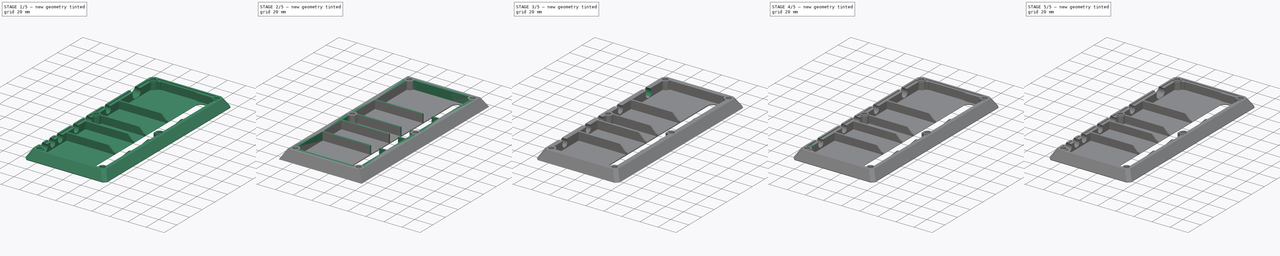
[diagram: build sequence overview — one tinted view per stage of 5, left to right]
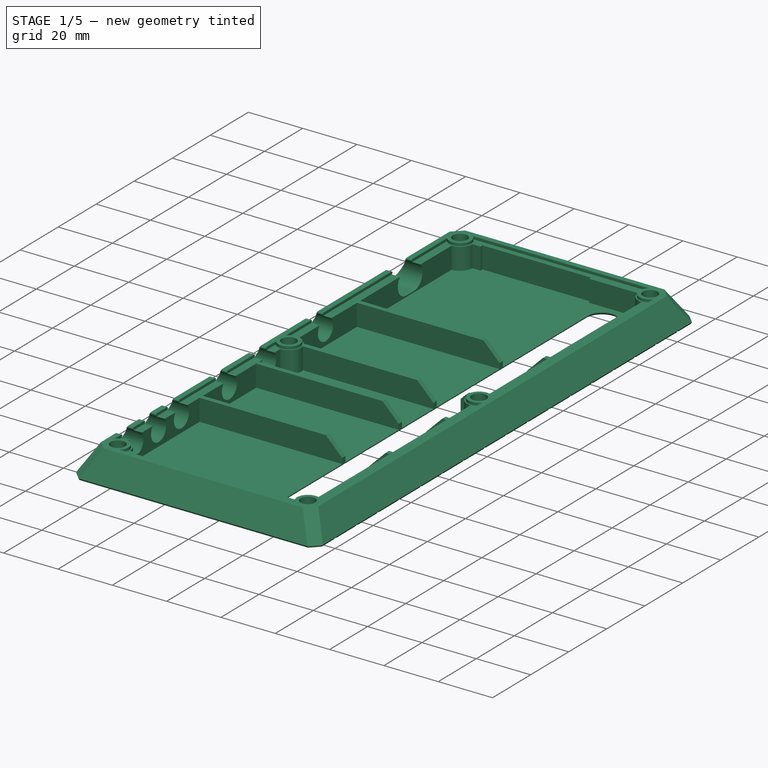
[diagram: stage 1 of 5 — iso view after this stage's code; geometry added in this stage tinted green]
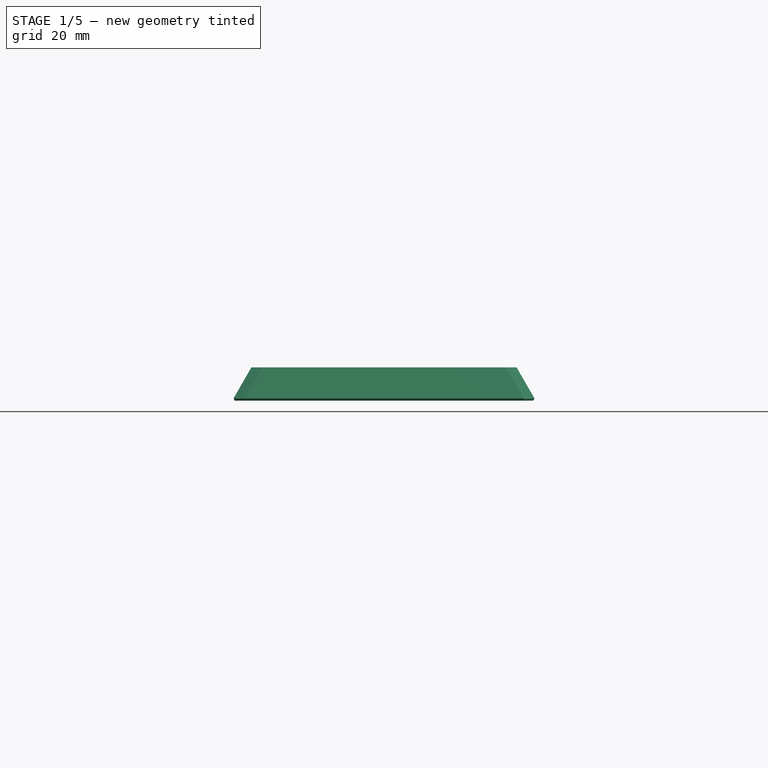
[diagram: stage 1 of 5 — front view after this stage's code; geometry added in this stage tinted green]
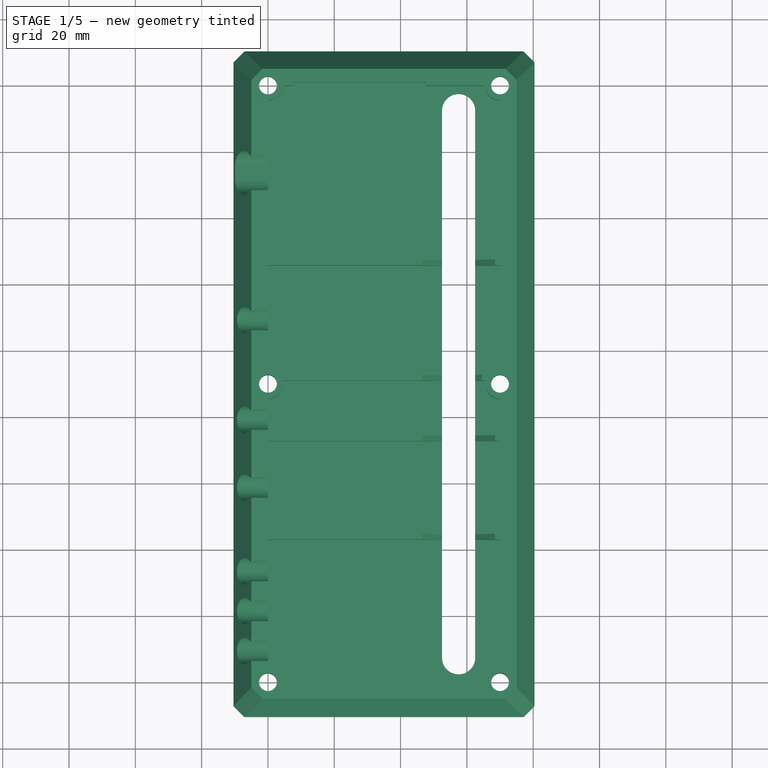
[diagram: stage 1 of 5 — top view after this stage's code; geometry added in this stage tinted green]
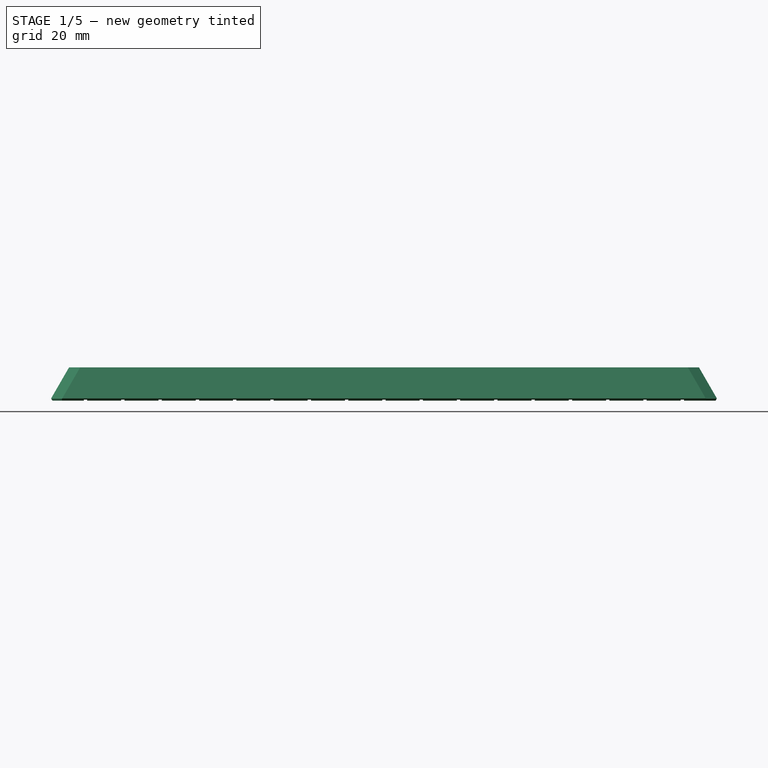
[diagram: stage 1 of 5 — right view after this stage's code; geometry added in this stage tinted green]
FCSTD DOCUMENT  (FreeCAD 0.16R5861 (Git))
Label: interconnect_housing_0.6
License: All rights reserved
LicenseURL: http://en.wikipedia.org/wiki/All_rights_reserved
objects: Sketcher::SketchObject×13, PartDesign::Pocket×9, PartDesign::Chamfer×5, PartDesign::Fillet×4, PartDesign::Pad×3, Part::Feature×2, PartDesign::Draft×1, PartDesign::LinearPattern×1
note: 50 computed .brp shape members not serialized (recipe doc carries the construction recipe); baked Part::Feature solids carry a one-line shape summary decoded from their .brp

FEATURE [Part::Feature] Pad002001  label="Pad003"
  shape: bbox 90.8 x 200.8 x 10 mm, 147 faces (baked)
FEATURE [Sketcher::SketchObject] Sketch010
  ExternalGeometry = -> [Pad002001]
  Placement = pos=(0,0,0) rot=(1,0,0;3.14159rad)
  Support = -> Pad002001 [Face129]
  sketch-geometry (4):
    g0: LineSegment StartX=-10.3985 StartY=0.523503 StartZ=0 EndX=80.3985 EndY=0.523503 EndZ=0
    g1: LineSegment StartX=80.3985 StartY=0.523503 StartZ=0 EndX=80.3985 EndY=-0.476497 EndZ=0
    g2: LineSegment StartX=80.3985 StartY=-0.476497 StartZ=0 EndX=-10.3985 EndY=-0.476497 EndZ=0
    g3: LineSegment StartX=-10.3985 StartY=-0.476497 StartZ=0 EndX=-10.3985 EndY=0.523503 EndZ=0
  constraints (12):
    c: Coincident(g0,g1)
    c: Coincident(g1,g2)
    c: Coincident(g2,g3)
    c: Coincident(g3,g0)
    c: Horizontal(g0)
    c: Horizontal(g2)
    c: Vertical(g1)
    c: Vertical(g3)
    c: PointOnObject(g0,g-4)
    c: PointOnObject(g1,g-5)
    c: DistanceY(g0,g2) = -1
    c: DistanceY(g0,g-3) = 9.5
FEATURE [PartDesign::Pocket] Pocket006
  Length = 0.3
  Sketch = -> Sketch010
  Type = 0
FEATURE [PartDesign::LinearPattern] LinearPattern
  Direction = -> Sketch010 [V_Axis]
  Length = 180
  Occurrences = 17
  Originals = -> [Pocket006]
  Reversed = true
FEATURE [Part::Feature] LinearPattern001
  shape: bbox 90.8 x 200.8 x 10 mm, 292 faces (baked)
FEATURE [Sketcher::SketchObject] Sketch011
  ExternalGeometry = -> [LinearPattern001]
  Placement = pos=(0,0,0) rot=(1,0,0;3.14159rad)
  Support = -> LinearPattern001 [Face167]
  sketch-geometry (6):
    g0: Circle CenterX=0 CenterY=0 CenterZ=0 NormalX=0 NormalY=0 NormalZ=1 Radius=3.25
    g1: Circle CenterX=70 CenterY=0 CenterZ=0 NormalX=0 NormalY=0 NormalZ=1 Radius=3.25
    g2: Circle CenterX=70 CenterY=-90 CenterZ=0 NormalX=0 NormalY=0 NormalZ=1 Radius=3.25
    g3: Circle CenterX=0 CenterY=-90 CenterZ=0 NormalX=0 NormalY=0 NormalZ=1 Radius=3.25
    g4: Circle CenterX=0 CenterY=-180 CenterZ=0 NormalX=0 NormalY=0 NormalZ=1 Radius=3.25
    g5: Circle CenterX=70 CenterY=-180 CenterZ=0 NormalX=0 NormalY=0 NormalZ=1 Radius=3.25
  constraints (12):
    c: Coincident(g0,g-1)
    c: Coincident(g1,g-3)
    c: Coincident(g2,g-4)
    c: Coincident(g3,g-5)
    c: Coincident(g4,g-6)
    c: Coincident(g5,g-7)
    c: Equal(g5,g4)
    c: Equal(g4,g3)
    c: Equal(g3,g2)
    c: Equal(g2,g0)
    c: Equal(g0,g1)
    c: Radius(g0) = 3.25
FEATURE [PartDesign::Pocket] Pocket007
  Length = 5
  Sketch = -> Sketch011
  Type = 1
FEATURE [PartDesign::Chamfer] Chamfer004
  Base = -> Pocket007 [Edge575,Edge292,Edge286,Edge563,Edge462,Edge471,Edge229,Edge219,Edge74,Edge326,Edge72,Edge315]
  Size = 0.3
FEATURE [Sketcher::SketchObject] Sketch012
  Placement = pos=(0,0,10) rot=(0,0,1;0rad)
  Support = -> Chamfer004 [Face167]
  sketch-geometry (4):
    g0: LineSegment StartX=-20 StartY=-20 StartZ=0 EndX=90 EndY=-20 EndZ=0
    g1: LineSegment StartX=90 StartY=-20 StartZ=0 EndX=90 EndY=200 EndZ=0
    g2: LineSegment StartX=90 StartY=200 StartZ=0 EndX=-20 EndY=200 EndZ=0
    g3: LineSegment StartX=-20 StartY=200 StartZ=0 EndX=-20 EndY=-20 EndZ=0
  constraints (12):
    c: Coincident(g0,g1)
    c: Coincident(g1,g2)
    c: Coincident(g2,g3)
    c: Coincident(g3,g0)
    c: Horizontal(g0)
    c: Horizontal(g2)
    c: Vertical(g1)
    c: Vertical(g3)
    c: DistanceY(g-1,g0) = -20
    c: DistanceX(g-1,g0) = -20
    c: DistanceY(g3) = -220
    c: DistanceX(g2) = -110
FEATURE [PartDesign::Pocket] Pocket008
  Length = 0.4
  Sketch = -> Sketch012
  Type = 0
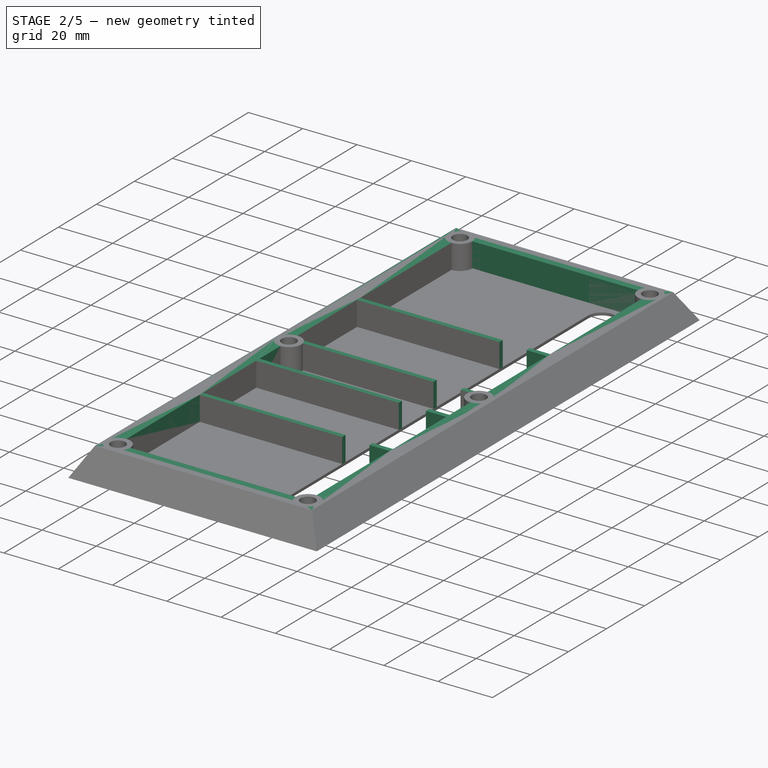
[diagram: stage 2 of 5 — iso view after this stage's code; geometry added in this stage tinted green]
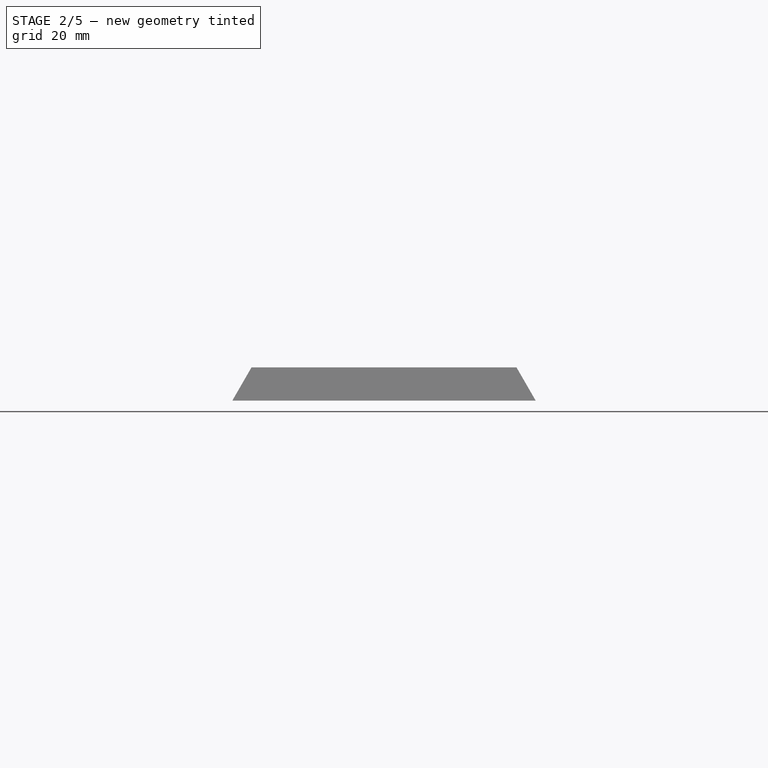
[diagram: stage 2 of 5 — front view after this stage's code; geometry added in this stage tinted green]
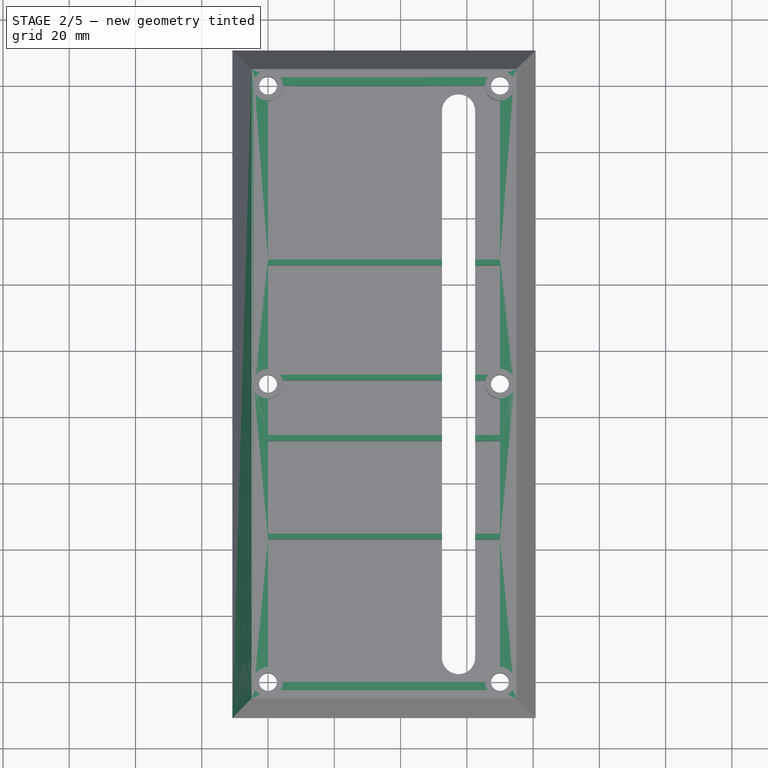
[diagram: stage 2 of 5 — top view after this stage's code; geometry added in this stage tinted green]
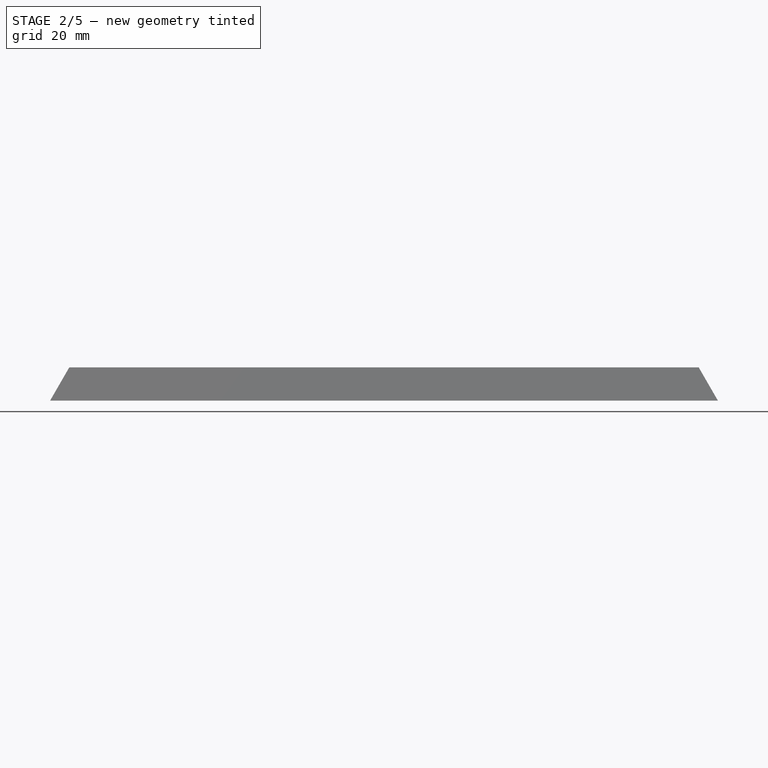
[diagram: stage 2 of 5 — right view after this stage's code; geometry added in this stage tinted green]
FEATURE [Sketcher::SketchObject] Sketch
  sketch-geometry (19):
    g0: LineSegment [constr] StartX=0 StartY=0 StartZ=0 EndX=70 EndY=0 EndZ=0
    g1: LineSegment [constr] StartX=70 StartY=0 StartZ=0 EndX=70 EndY=180 EndZ=0
    g2: LineSegment [constr] StartX=70 StartY=180 StartZ=0 EndX=0 EndY=180 EndZ=0
    g3: LineSegment [constr] StartX=0 StartY=180 StartZ=0 EndX=0 EndY=0 EndZ=0
    g4: LineSegment [constr] StartX=0 StartY=90 StartZ=0 EndX=70 EndY=90 EndZ=0
    g5: Circle CenterX=0 CenterY=180 CenterZ=0 NormalX=0 NormalY=0 NormalZ=1 Radius=2.7
    g6: Circle CenterX=70 CenterY=180 CenterZ=0 NormalX=0 NormalY=0 NormalZ=1 Radius=2.7
    g7: Circle CenterX=70 CenterY=90 CenterZ=0 NormalX=0 NormalY=0 NormalZ=1 Radius=2.7
    g8: Circle CenterX=0 CenterY=90 CenterZ=0 NormalX=0 NormalY=0 NormalZ=1 Radius=2.7
    g9: Circle CenterX=0 CenterY=0 CenterZ=0 NormalX=0 NormalY=0 NormalZ=1 Radius=2.7
    g10: Circle CenterX=70 CenterY=0 CenterZ=0 NormalX=0 NormalY=0 NormalZ=1 Radius=2.7
    g11: LineSegment StartX=-5 StartY=-5 StartZ=0 EndX=75 EndY=-5 EndZ=0
    g12: LineSegment StartX=75 StartY=-5 StartZ=0 EndX=75 EndY=185 EndZ=0
    g13: LineSegment StartX=75 StartY=185 StartZ=0 EndX=-5 EndY=185 EndZ=0
    g14: LineSegment StartX=-5 StartY=185 StartZ=0 EndX=-5 EndY=-5 EndZ=0
    g15: ArcOfCircle CenterX=57.5 CenterY=172.5 CenterZ=0 NormalX=0 NormalY=0 NormalZ=1 Radius=5 StartAngle=0 EndAngle=3.14159
    g16: ArcOfCircle CenterX=57.5 CenterY=7.5 CenterZ=0 NormalX=0 NormalY=0 NormalZ=1 Radius=5 StartAngle=3.14159 EndAngle=6.28319
    g17: LineSegment StartX=52.5 StartY=172.5 StartZ=0 EndX=52.5 EndY=7.5 EndZ=0
    g18: LineSegment StartX=62.5 StartY=172.5 StartZ=0 EndX=62.5 EndY=7.5 EndZ=0
  constraints (49):
    c: Coincident(g0,g1)
    c: Coincident(g1,g2)
    c: Coincident(g2,g3)
    c: Coincident(g3,g0)
    c: Horizontal(g0)
    c: Horizontal(g2)
    c: Vertical(g1)
    c: Vertical(g3)
    c: Coincident(g0,g-1)
    c: PointOnObject(g4,g3)
    c: PointOnObject(g4,g1)
    c: Horizontal(g4)
    c: DistanceY(g4,g1) = 90
    c: DistanceY(g1) = 180
    c: DistanceX(g2) = -70
    c: Coincident(g5,g2)
    c: Coincident(g6,g1)
    c: Coincident(g7,g4)
    c: Coincident(g8,g4)
    c: Coincident(g9,g-1)
    c: Coincident(g10,g0)
    c: Equal(g9,g8)
    c: Equal(g8,g10)
    c: Equal(g10,g7)
    c: Equal(g7,g6)
    c: Equal(g6,g5)
    c: Radius(g6) = 2.7
    c: Coincident(g11,g12)
    c: Coincident(g12,g13)
    c: Coincident(g13,g14)
    c: Coincident(g14,g11)
    c: Horizontal(g11)
    c: Horizontal(g13)
    c: Vertical(g12)
    c: Vertical(g14)
    c: DistanceX(g-1,g11) = -5
    c: DistanceY(g-1,g11) = -5
    c: DistanceX(g1,g12) = 5
    c: DistanceY(g1,g12) = 5
    c: Tangent(g15,g18) = 1.5708
    c: Tangent(g15,g17) = -1.5708
    c: Tangent(g17,g16) = -1.5708
    c: Tangent(g18,g16) = 1.5708
    c: Vertical(g17)
    c: Equal(g15,g16)
    c: DistanceX(g16,g16) = -10
    c: DistanceY(g16,g0) = -7.5
    c: DistanceY(g15,g1) = 7.5
    c: DistanceX(g15,g1) = 12.5
FEATURE [PartDesign::Pad] Pad
  Length = 10
  Length2 = 100
  Sketch = -> Sketch
  Type = 0
FEATURE [Sketcher::SketchObject] Sketch001
  ExternalGeometry = -> [Pad]
  Placement = pos=(0,0,10) rot=(0,0,1;0rad)
  Support = -> Pad [Face16]
  sketch-geometry (24):
    g0: LineSegment [constr] StartX=0 StartY=0 StartZ=0 EndX=70 EndY=0 EndZ=0
    g1: LineSegment [constr] StartX=70 StartY=0 StartZ=0 EndX=70 EndY=180 EndZ=0
    g2: LineSegment [constr] StartX=70 StartY=180 StartZ=0 EndX=0 EndY=180 EndZ=0
    g3: LineSegment [constr] StartX=0 StartY=180 StartZ=0 EndX=0 EndY=0 EndZ=0
    g4: LineSegment StartX=0 StartY=180 StartZ=0 EndX=70 EndY=180 EndZ=0
    g5: LineSegment StartX=70 StartY=180 StartZ=0 EndX=70 EndY=127.5 EndZ=0
    g6: LineSegment StartX=70 StartY=127.5 StartZ=0 EndX=0 EndY=127.5 EndZ=0
    g7: LineSegment StartX=0 StartY=127.5 StartZ=0 EndX=0 EndY=180 EndZ=0
    g8: LineSegment StartX=0 StartY=125.75 StartZ=0 EndX=70 EndY=125.75 EndZ=0
    g9: LineSegment StartX=70 StartY=125.75 StartZ=0 EndX=70 EndY=92.75 EndZ=0
    g10: LineSegment StartX=70 StartY=92.75 StartZ=0 EndX=0 EndY=92.75 EndZ=0
    g11: LineSegment StartX=0 StartY=92.75 StartZ=0 EndX=0 EndY=125.75 EndZ=0
    g12: LineSegment StartX=0 StartY=91 StartZ=0 EndX=70 EndY=91 EndZ=0
    g13: LineSegment StartX=70 StartY=91 StartZ=0 EndX=70 EndY=74.5 EndZ=0
    g14: LineSegment StartX=70 StartY=74.5 StartZ=0 EndX=0 EndY=74.5 EndZ=0
    g15: LineSegment StartX=0 StartY=74.5 StartZ=0 EndX=0 EndY=91 EndZ=0
    g16: LineSegment StartX=0 StartY=72.75 StartZ=0 EndX=70 EndY=72.75 EndZ=0
    g17: LineSegment StartX=70 StartY=72.75 StartZ=0 EndX=70 EndY=44.75 EndZ=0
    g18: LineSegment StartX=70 StartY=44.75 StartZ=0 EndX=0 EndY=44.75 EndZ=0
    g19: LineSegment StartX=0 StartY=44.75 StartZ=0 EndX=0 EndY=72.75 EndZ=0
    g20: LineSegment StartX=0 StartY=43 StartZ=0 EndX=70 EndY=43 EndZ=0
    g21: LineSegment StartX=70 StartY=43 StartZ=0 EndX=70 EndY=0 EndZ=0
    g22: LineSegment StartX=70 StartY=0 StartZ=0 EndX=0 EndY=0 EndZ=0
    g23: LineSegment StartX=0 StartY=0 StartZ=0 EndX=0 EndY=43 EndZ=0
  constraints (68):
    c: Coincident(g0,g1)
    c: Coincident(g1,g2)
    c: Coincident(g2,g3)
    c: Coincident(g3,g0)
    c: Horizontal(g0)
    c: Horizontal(g2)
    c: Vertical(g1)
    c: Vertical(g3)
    c: Coincident(g0,g-1)
    c: Coincident(g1,g-3)
    c: Coincident(g4,g5)
    c: Coincident(g5,g6)
    c: Coincident(g6,g7)
    c: Coincident(g7,g4)
    c: Horizontal(g4)
    c: Horizontal(g6)
    c: Vertical(g5)
    c: Vertical(g7)
    c: Coincident(g4,g2)
    c: PointOnObject(g5,g1)
    c: Coincident(g8,g9)
    c: Coincident(g9,g10)
    c: Coincident(g10,g11)
    c: Coincident(g11,g8)
    c: Horizontal(g8)
    c: Horizontal(g10)
    c: Vertical(g9)
    c: Vertical(g11)
    c: PointOnObject(g8,g3)
    c: PointOnObject(g9,g1)
    c: Coincident(g12,g13)
    c: Coincident(g13,g14)
    c: Coincident(g14,g15)
    c: Coincident(g15,g12)
    c: Horizontal(g12)
    c: Horizontal(g14)
    c: Vertical(g13)
    c: Vertical(g15)
    c: Coincident(g16,g17)
    c: Coincident(g17,g18)
    c: Coincident(g18,g19)
    c: Coincident(g19,g16)
    c: Horizontal(g16)
    c: Horizontal(g18)
    c: Vertical(g17)
    c: Vertical(g19)
    c: PointOnObject(g16,g3)
    c: PointOnObject(g17,g1)
    c: DistanceY(g6,g2) = 52.5
    c: DistanceY(g10,g8) = 33
    c: Coincident(g20,g21)
    c: Coincident(g21,g22)
    c: Coincident(g22,g23)
    c: Coincident(g23,g20)
    c: Horizontal(g20)
    c: Horizontal(g22)
    c: Vertical(g21)
    c: Vertical(g23)
    c: PointOnObject(g20,g3)
    c: Coincident(g21,g0)
    c: DistanceY(g16,g18) = -28
    c: DistanceY(g-1,g20) = 43
    c: DistanceY(g13) = -16.5
    c: DistanceY(g8,g5) = 1.75
    c: DistanceY(g13,g16) = -1.75
    c: PointOnObject(g12,g3)
    c: PointOnObject(g13,g1)
    c: DistanceY(g12,g9) = 1.75
FEATURE [PartDesign::Pocket] Pocket
  Length = 9
  Sketch = -> Sketch001
  Type = 0
FEATURE [PartDesign::Draft] Draft
  Angle = 30
  Base = -> Pocket [Face6,Face3,Face1,Face2]
  NeutralPlane = -> Pocket [Face5]
  Reversed = true
FEATURE [Sketcher::SketchObject] Sketch002
  ExternalGeometry = -> [Draft]
  Placement = pos=(0,0,0) rot=(1,0,0;3.14159rad)
  Support = -> Draft [Face4]
  sketch-geometry (12):
    g0: Circle CenterX=0 CenterY=0 CenterZ=0 NormalX=0 NormalY=0 NormalZ=1 Radius=2.7
    g1: Circle CenterX=0 CenterY=0 CenterZ=0 NormalX=0 NormalY=0 NormalZ=1 Radius=4.5
    g2: Circle CenterX=70 CenterY=0 CenterZ=0 NormalX=0 NormalY=0 NormalZ=1 Radius=4.5
    g3: Circle CenterX=70 CenterY=0 CenterZ=0 NormalX=0 NormalY=0 NormalZ=1 Radius=2.7
    g4: Circle CenterX=70 CenterY=-90 CenterZ=0 NormalX=0 NormalY=0 NormalZ=1 Radius=2.7
    g5: Circle CenterX=70 CenterY=-90 CenterZ=0 NormalX=0 NormalY=0 NormalZ=1 Radius=4.5
    g6: Circle CenterX=0 CenterY=-90 CenterZ=0 NormalX=0 NormalY=0 NormalZ=1 Radius=2.7
    g7: Circle CenterX=0 CenterY=-90 CenterZ=0 NormalX=0 NormalY=0 NormalZ=1 Radius=4.5
    g8: Circle CenterX=0 CenterY=-180 CenterZ=0 NormalX=0 NormalY=0 NormalZ=1 Radius=2.7
    g9: Circle CenterX=0 CenterY=-180 CenterZ=0 NormalX=0 NormalY=0 NormalZ=1 Radius=4.5
    g10: Circle CenterX=70 CenterY=-180 CenterZ=0 NormalX=0 NormalY=0 NormalZ=1 Radius=2.7
    g11: Circle CenterX=70 CenterY=-180 CenterZ=0 NormalX=0 NormalY=0 NormalZ=1 Radius=4.5
  constraints (24):
    c: Coincident(g0,g-1)
    c: Coincident(g1,g-1)
    c: Coincident(g2,g-3)
    c: Coincident(g3,g2)
    c: Coincident(g4,g-5)
    c: Coincident(g5,g4)
    c: Coincident(g6,g-4)
    c: Coincident(g7,g6)
    c: Coincident(g8,g-7)
    c: Coincident(g9,g8)
    c: Coincident(g10,g-6)
    c: Coincident(g11,g10)
    c: Equal(g10,g-6)
    c: Equal(g-6,g8)
    c: Equal(g8,g6)
    c: Equal(g6,g4)
    c: Equal(g4,g3)
    c: Equal(g3,g0)
    c: Equal(g11,g9)
    c: Equal(g9,g7)
    c: Equal(g7,g5)
    c: Equal(g5,g2)
    c: Equal(g2,g1)
    c: Radius(g2) = 4.5
FEATURE [PartDesign::Pad] Pad001
  Length = 10
  Length2 = 100
  Reversed = true
  Sketch = -> Sketch002
  Type = 0
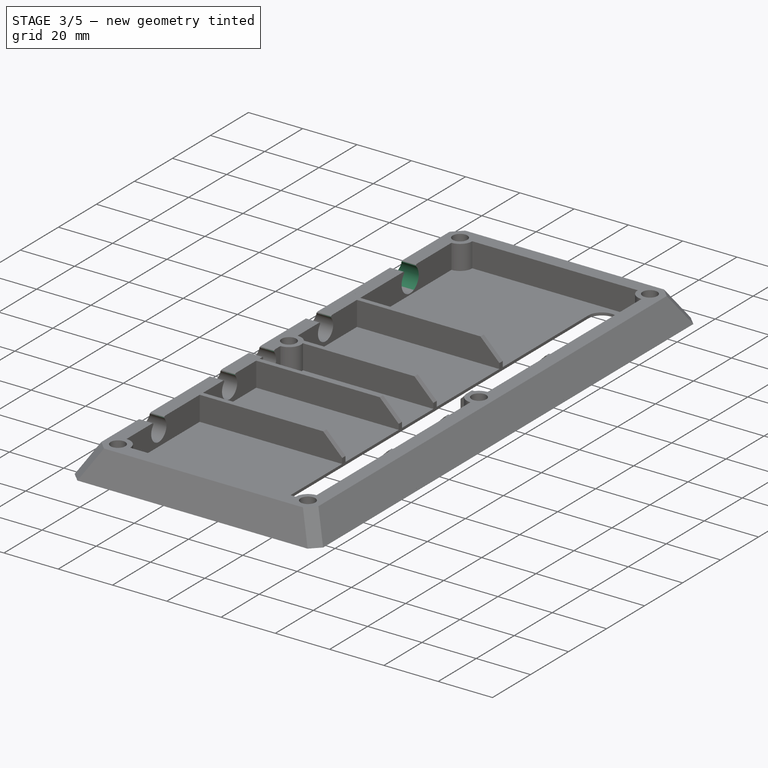
[diagram: stage 3 of 5 — iso view after this stage's code; geometry added in this stage tinted green]
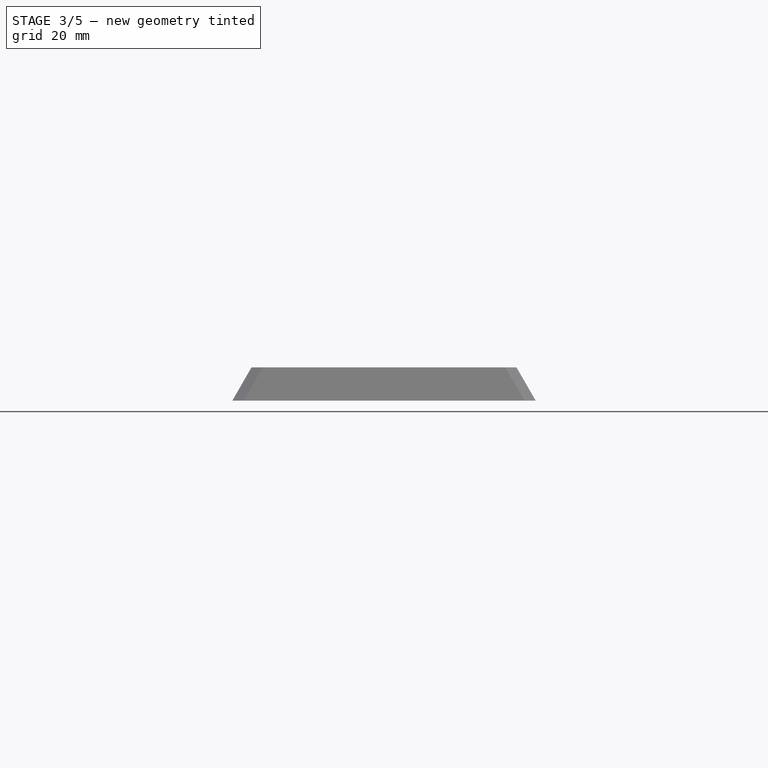
[diagram: stage 3 of 5 — front view after this stage's code; geometry added in this stage tinted green]
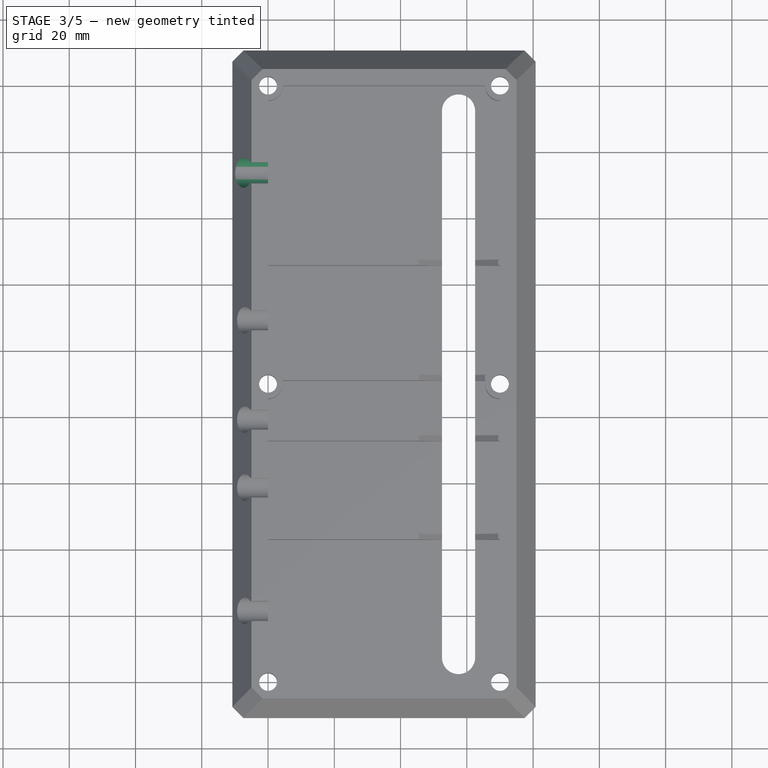
[diagram: stage 3 of 5 — top view after this stage's code; geometry added in this stage tinted green]
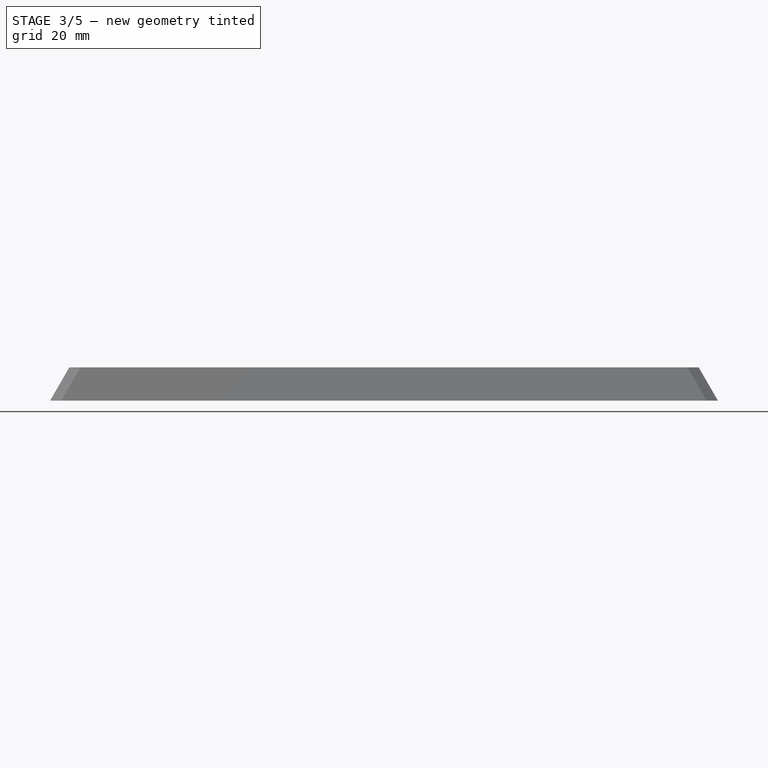
[diagram: stage 3 of 5 — right view after this stage's code; geometry added in this stage tinted green]
FEATURE [PartDesign::Chamfer] Chamfer
  Base = -> Pad001 [Edge23,Edge53,Edge89,Edge47,Edge30,Edge34,Edge43]
  Size = 7
FEATURE [PartDesign::Chamfer] Chamfer001
  Base = -> Chamfer [Edge165]
  Size = 3
FEATURE [Sketcher::SketchObject] Sketch003
  ExternalGeometry = -> [Chamfer001]
  Placement = pos=(0,0,0) rot=(0.57735,0.57735,0.57735;2.0944rad)
  Support = -> Chamfer001 [Face51]
  sketch-geometry (16):
    g0: LineSegment [constr] StartX=0 StartY=10 StartZ=0 EndX=21.5 EndY=6.5 EndZ=0
    g1: LineSegment [constr] StartX=21.5 StartY=6.5 StartZ=0 EndX=43 EndY=10 EndZ=0
    g2: LineSegment [constr] StartX=44.75 StartY=10 StartZ=0 EndX=58.75 EndY=6.5 EndZ=0
    g3: LineSegment [constr] StartX=58.75 StartY=6.5 StartZ=0 EndX=72.75 EndY=10 EndZ=0
    g4: LineSegment [constr] StartX=74.5 StartY=10 StartZ=0 EndX=79.25 EndY=6.5 EndZ=0
    g5: LineSegment [constr] StartX=79.25 StartY=6.5 StartZ=0 EndX=91 EndY=10 EndZ=0
    g6: LineSegment [constr] StartX=92.75 StartY=10 StartZ=0 EndX=109.25 EndY=6.5 EndZ=0
    g7: LineSegment [constr] StartX=109.25 StartY=6.5 StartZ=0 EndX=125.75 EndY=10 EndZ=0
    g8: LineSegment [constr] StartX=127.5 StartY=10 StartZ=0 EndX=153.75 EndY=6 EndZ=0
    g9: LineSegment [constr] StartX=153.75 StartY=6 StartZ=0 EndX=180 EndY=10 EndZ=0
    g10: Circle CenterX=21.5 CenterY=6.5 CenterZ=0 NormalX=0 NormalY=0 NormalZ=1 Radius=4
    g11: Circle CenterX=58.75 CenterY=6.5 CenterZ=0 NormalX=0 NormalY=0 NormalZ=1 Radius=4
    g12: Circle CenterX=79.25 CenterY=6.5 CenterZ=0 NormalX=0 NormalY=0 NormalZ=1 Radius=4
    g13: Circle CenterX=109.25 CenterY=6.5 CenterZ=0 NormalX=0 NormalY=0 NormalZ=1 Radius=4
    g14: Circle CenterX=153.75 CenterY=6 CenterZ=0 NormalX=0 NormalY=0 NormalZ=1 Radius=4.5
    g15: LineSegment [constr] StartX=79.25 StartY=6.5 StartZ=0 EndX=109.25 EndY=6.5 EndZ=0
  constraints (37):
    c: Coincident(g-3,g0)
    c: Coincident(g0,g1)
    c: Coincident(g1,g-4)
    c: Coincident(g-5,g2)
    c: Coincident(g2,g3)
    c: Coincident(g3,g-6)
    c: Coincident(g-7,g4)
    c: Coincident(g4,g5)
    c: Coincident(g5,g-8)
    c: Coincident(g-9,g6)
    c: Coincident(g6,g7)
    c: Coincident(g7,g-10)
    c: Coincident(g-11,g8)
    c: Coincident(g8,g9)
    c: Coincident(g9,g-12)
    c: Equal(g0,g1)
    c: Equal(g3,g2)
    c: Equal(g6,g7)
    c: Equal(g8,g9)
    c: Coincident(g10,g0)
    c: Coincident(g11,g2)
    c: Coincident(g12,g4)
    c: Coincident(g13,g6)
    c: Coincident(g14,g8)
    c: Equal(g10,g11)
    c: Equal(g11,g12)
    c: Equal(g12,g13)
    c: Radius(g14) = 4.5
    c: DistanceY(g8,g9) = 4
    c: Radius(g13) = 4
    c: DistanceY(g6,g7) = 3.5
    c: DistanceY(g4,g5) = 3.5
    c: DistanceY(g2,g3) = 3.5
    c: DistanceY(g0,g1) = 3.5
    c: Coincident(g15,g4)
    c: Coincident(g15,g6)
    c: DistanceX(g15) = 30
FEATURE [PartDesign::Pocket] Pocket001
  Length = 5
  Sketch = -> Sketch003
  Type = 1
FEATURE [PartDesign::Fillet] Fillet
  Base = -> Pocket001 [Edge109,Edge247,Edge249,Edge253,Edge256,Edge260,Edge264,Edge244,Edge243,Edge115]
  Radius = 0.5
FEATURE [PartDesign::Chamfer] Chamfer002
  Base = -> Fillet [Edge47,Edge76,Edge82,Edge51]
  Size = 3
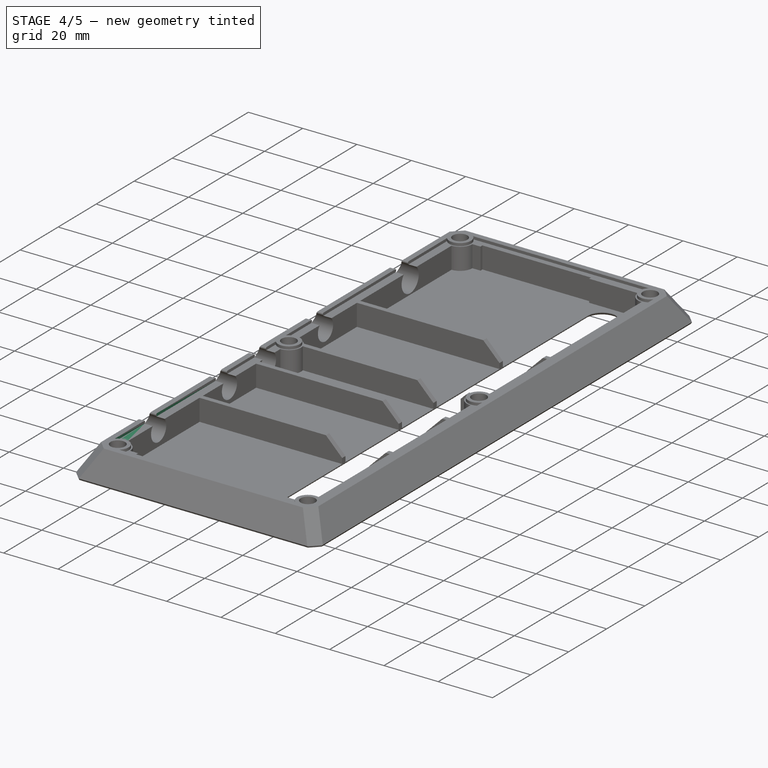
[diagram: stage 4 of 5 — iso view after this stage's code; geometry added in this stage tinted green]
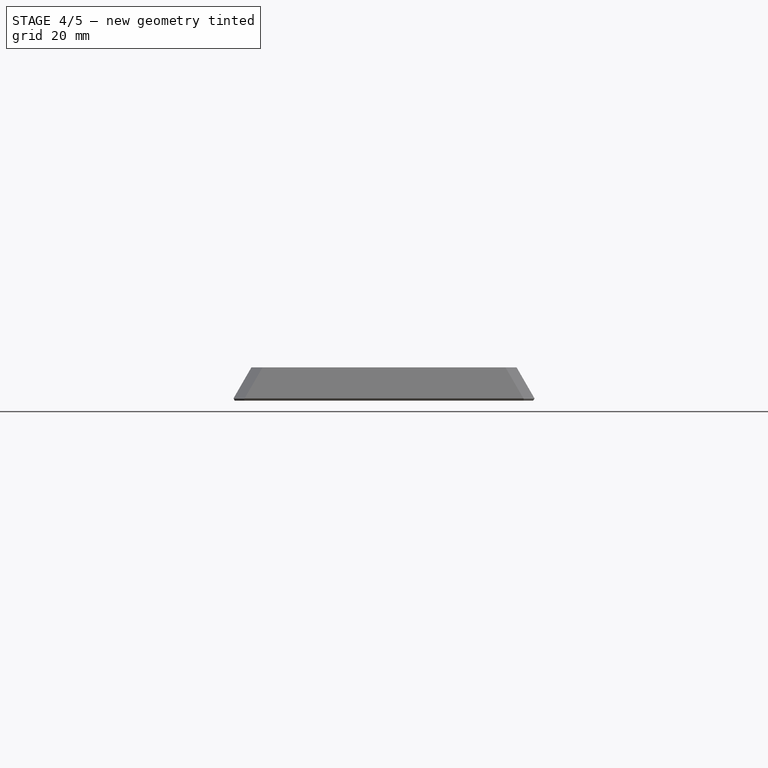
[diagram: stage 4 of 5 — front view after this stage's code; geometry added in this stage tinted green]
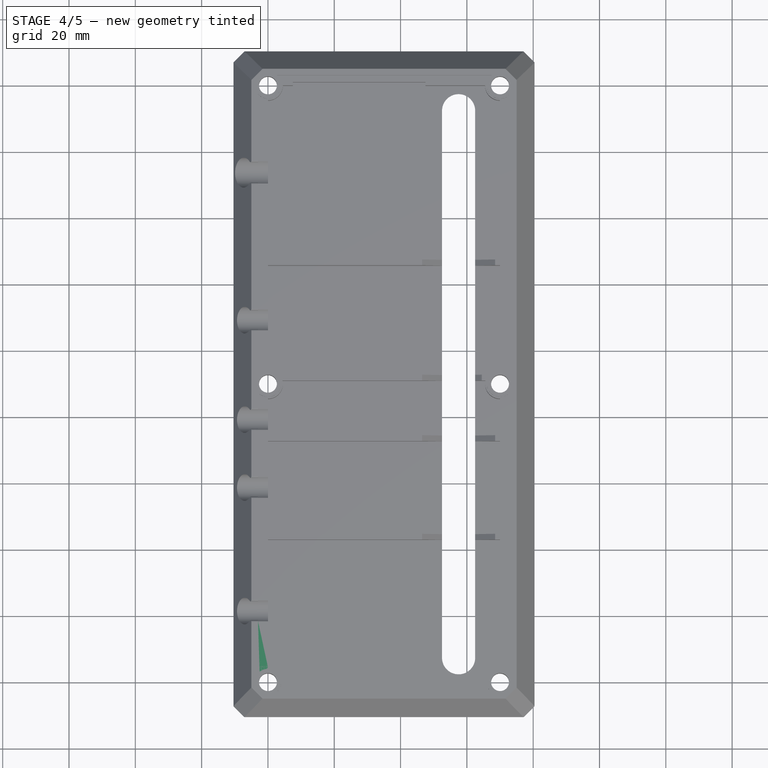
[diagram: stage 4 of 5 — top view after this stage's code; geometry added in this stage tinted green]
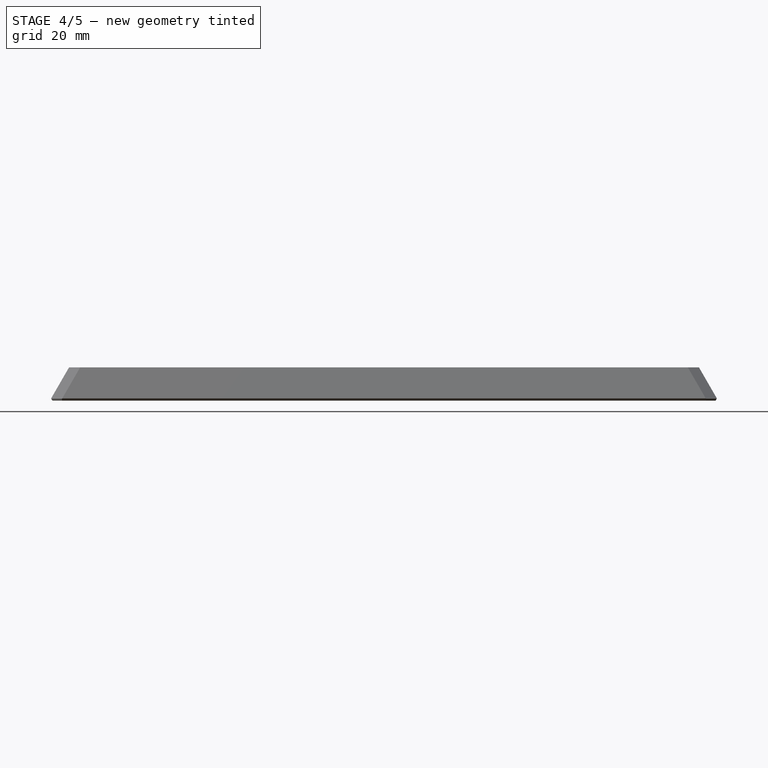
[diagram: stage 4 of 5 — right view after this stage's code; geometry added in this stage tinted green]
FEATURE [PartDesign::Chamfer] Chamfer003
  Base = -> Chamfer002 [Edge69,Edge65,Edge78,Edge40,Edge83,Edge96,Edge88,Edge94,Edge159,Edge160,Edge161,Edge162,Edge163,Edge164,Edge165,Edge166,Edge167,Edge168]
  Size = 0.75
FEATURE [Sketcher::SketchObject] Sketch004
  ExternalGeometry = -> [Chamfer003]
  Placement = pos=(0,0,10) rot=(0,0,1;0rad)
  Support = -> Chamfer003 [Face4]
  sketch-geometry (4):
    g0: LineSegment StartX=73 StartY=183 StartZ=0 EndX=-3 EndY=183 EndZ=0
    g1: LineSegment StartX=-3 StartY=183 StartZ=0 EndX=-3 EndY=-3 EndZ=0
    g2: LineSegment StartX=-3 StartY=-3 StartZ=0 EndX=73 EndY=-3 EndZ=0
    g3: LineSegment StartX=73 StartY=-3 StartZ=0 EndX=73 EndY=183 EndZ=0
  constraints (12):
    c: Coincident(g0,g1)
    c: Coincident(g1,g2)
    c: Coincident(g2,g3)
    c: Coincident(g3,g0)
    c: Horizontal(g0)
    c: Horizontal(g2)
    c: Vertical(g1)
    c: Vertical(g3)
    c: DistanceX(g-1,g1) = -3
    c: DistanceY(g-1,g1) = -3
    c: DistanceY(g-3,g0) = 3
    c: DistanceX(g-3,g0) = 3
FEATURE [PartDesign::Pocket] Pocket002
  Length = 1
  Sketch = -> Sketch004
  Type = 0
FEATURE [PartDesign::Fillet] Fillet001
  Base = -> Pocket002 [Edge170,Edge168,Edge179,Edge174]
  Radius = 3
FEATURE [Sketcher::SketchObject] Sketch005
  ExternalGeometry = -> [Fillet001]
  Placement = pos=(0,0,9) rot=(0,0,1;0rad)
  Support = -> Fillet001 [Face5]
  sketch-geometry (8):
    g0: LineSegment StartX=7.5 StartY=180 StartZ=0 EndX=47.5 EndY=180 EndZ=0
    g1: LineSegment StartX=47.5 StartY=180 StartZ=0 EndX=47.5 EndY=181 EndZ=0
    g2: LineSegment StartX=47.5 StartY=181 StartZ=0 EndX=7.5 EndY=181 EndZ=0
    g3: LineSegment StartX=7.5 StartY=181 StartZ=0 EndX=7.5 EndY=180 EndZ=0
    g4: LineSegment StartX=7.5 StartY=0 StartZ=0 EndX=47.5 EndY=0 EndZ=0
    g5: LineSegment StartX=47.5 StartY=0 StartZ=0 EndX=47.5 EndY=-1 EndZ=0
    g6: LineSegment StartX=47.5 StartY=-1 StartZ=0 EndX=7.5 EndY=-1 EndZ=0
    g7: LineSegment StartX=7.5 StartY=-1 StartZ=0 EndX=7.5 EndY=0 EndZ=0
  constraints (24):
    c: Coincident(g0,g1)
    c: Coincident(g1,g2)
    c: Coincident(g2,g3)
    c: Coincident(g3,g0)
    c: Horizontal(g0)
    c: Horizontal(g2)
    c: Vertical(g1)
    c: Vertical(g3)
    c: PointOnObject(g0,g-3)
    c: Coincident(g4,g5)
    c: Coincident(g5,g6)
    c: Coincident(g6,g7)
    c: Coincident(g7,g4)
    c: Horizontal(g4)
    c: Horizontal(g6)
    c: Vertical(g5)
    c: Vertical(g7)
    c: PointOnObject(g4,g-1)
    c: Equal(g6,g2)
    c: Equal(g3,g7)
    c: PointOnObject(g4,g3)
    c: DistanceX(g0,g-3) = -3
    c: DistanceX(g2) = -40
    c: DistanceY(g3) = -1
FEATURE [PartDesign::Pocket] Pocket003
  Length = 8
  Sketch = -> Sketch005
  Type = 0
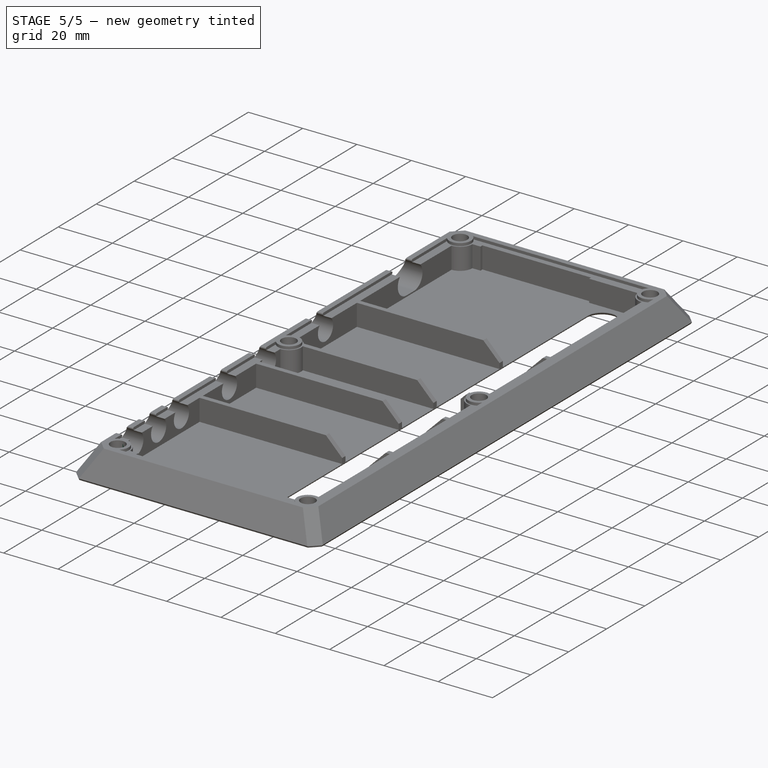
[diagram: stage 5 of 5 — iso view after this stage's code; geometry added in this stage tinted green]
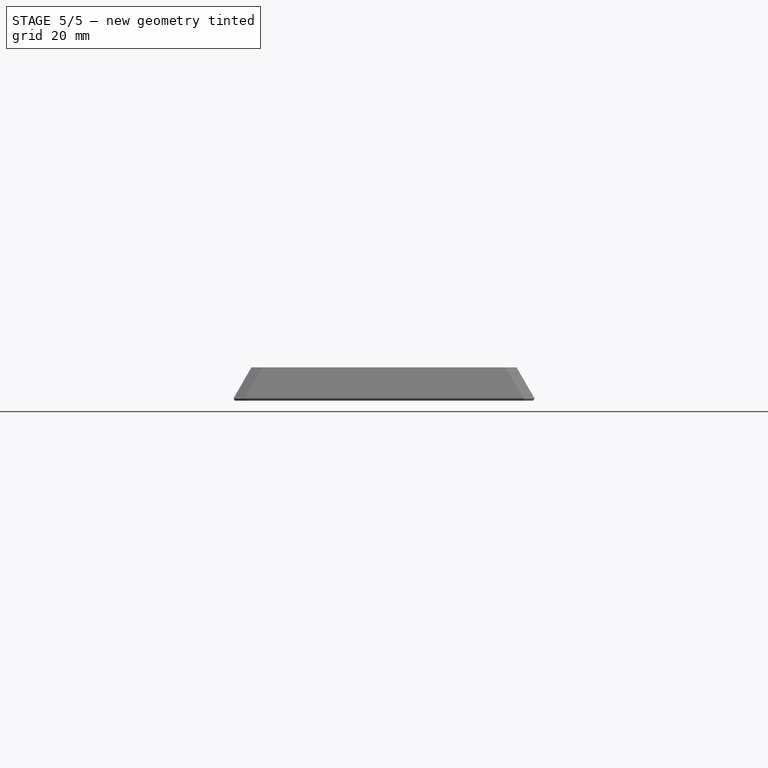
[diagram: stage 5 of 5 — front view after this stage's code; geometry added in this stage tinted green]
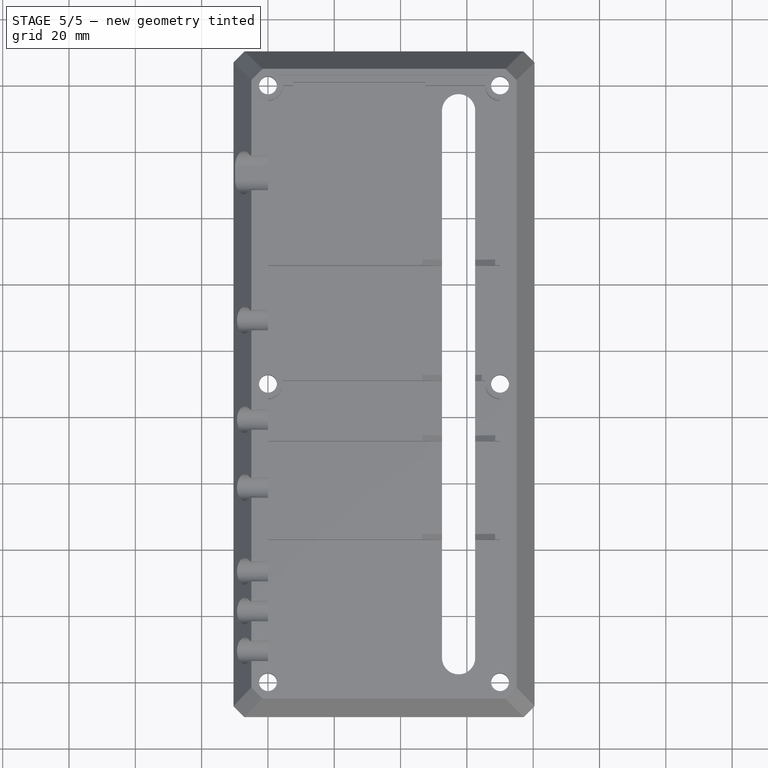
[diagram: stage 5 of 5 — top view after this stage's code; geometry added in this stage tinted green]
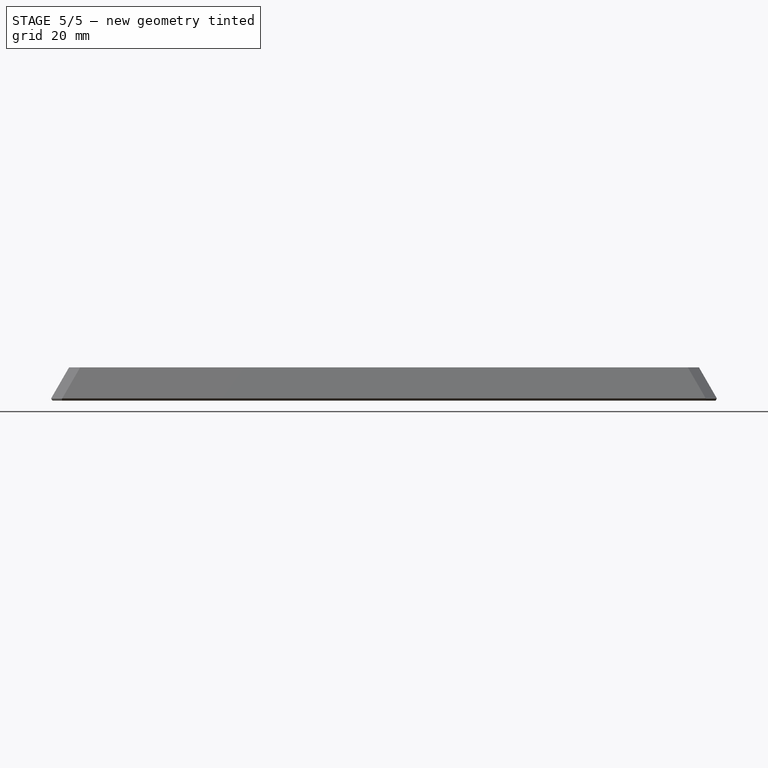
[diagram: stage 5 of 5 — right view after this stage's code; geometry added in this stage tinted green]
FEATURE [Sketcher::SketchObject] Sketch006
  ExternalGeometry = -> [Pocket003]
  Placement = pos=(0,0,0) rot=(0.57735,0.57735,0.57735;2.0944rad)
  Support = -> Pocket003 [Face59]
  sketch-geometry (4):
    g0: LineSegment [constr] StartX=21.5 StartY=6.5 StartZ=0 EndX=33.5 EndY=6.5 EndZ=0
    g1: LineSegment [constr] StartX=21.5 StartY=6.5 StartZ=0 EndX=9.5 EndY=6.5 EndZ=0
    g2: Circle CenterX=33.5 CenterY=6.5 CenterZ=0 NormalX=0 NormalY=0 NormalZ=1 Radius=4
    g3: Circle CenterX=9.5 CenterY=6.5 CenterZ=0 NormalX=0 NormalY=0 NormalZ=1 Radius=4
  constraints (10):
    c: Coincident(g0,g-3)
    c: Horizontal(g0)
    c: Coincident(g1,g0)
    c: Horizontal(g1)
    c: Equal(g0,g1)
    c: Coincident(g2,g0)
    c: Coincident(g3,g1)
    c: Equal(g2,g3)
    c: Equal(g3,g-3)
    c: DistanceX(g0) = 12
FEATURE [PartDesign::Pocket] Pocket004
  Length = 5
  Sketch = -> Sketch006
  Type = 1
FEATURE [PartDesign::Fillet] Fillet002
  Base = -> Pocket004 [Edge323,Edge316,Edge33,Edge303]
  Radius = 0.5
FEATURE [Sketcher::SketchObject] Sketch007
  ExternalGeometry = -> [Fillet002]
  Placement = pos=(0,0,0) rot=(0.57735,0.57735,0.57735;2.0944rad)
  Support = -> Fillet002 [Face68]
  sketch-geometry (6):
    g0: LineSegment [constr] StartX=153.75 StartY=6 StartZ=0 EndX=151.75 EndY=6 EndZ=0
    g1: LineSegment [constr] StartX=153.75 StartY=6 StartZ=0 EndX=155.75 EndY=6 EndZ=0
    g2: ArcOfCircle CenterX=151.75 CenterY=6 CenterZ=0 NormalX=0 NormalY=0 NormalZ=1 Radius=4.5 StartAngle=1.5708 EndAngle=4.71239
    g3: ArcOfCircle CenterX=155.75 CenterY=6 CenterZ=0 NormalX=0 NormalY=0 NormalZ=1 Radius=4.5 StartAngle=4.71239 EndAngle=7.85398
    g4: LineSegment StartX=151.75 StartY=1.5 StartZ=0 EndX=155.75 EndY=1.5 EndZ=0
    g5: LineSegment StartX=151.75 StartY=10.5 StartZ=0 EndX=155.75 EndY=10.5 EndZ=0
  constraints (15):
    c: Coincident(g0,g-3)
    c: Horizontal(g0)
    c: Coincident(g1,g0)
    c: Horizontal(g1)
    c: Tangent(g2,g5) = 1.5708
    c: Tangent(g2,g4) = -1.5708
    c: Tangent(g4,g3) = -1.5708
    c: Tangent(g5,g3) = 1.5708
    c: Horizontal(g4)
    c: Equal(g2,g3)
    c: Coincident(g2,g0)
    c: Coincident(g3,g1)
    c: Equal(g1,g0)
    c: Equal(g2,g-3)
    c: DistanceX(g1) = 2
FEATURE [PartDesign::Pocket] Pocket005
  Length = 5
  Sketch = -> Sketch007
  Type = 1
FEATURE [PartDesign::Fillet] Fillet003
  Base = -> Pocket005 [Edge199,Edge11]
  Radius = 0.5
FEATURE [Sketcher::SketchObject] Sketch008
  Placement = pos=(0,0,9) rot=(0,0,1;0rad)
  Support = -> Fillet003 [Face60]
FEATURE [Sketcher::SketchObject] Sketch009
  ExternalGeometry = -> [Fillet003]
  Placement = pos=(0,0,10) rot=(0,0,1;0rad)
  Support = -> Fillet003 [Face1]
  sketch-geometry (12):
    g0: Circle CenterX=0 CenterY=180 CenterZ=0 NormalX=0 NormalY=0 NormalZ=1 Radius=2.7
    g1: Circle CenterX=70 CenterY=180 CenterZ=0 NormalX=0 NormalY=0 NormalZ=1 Radius=2.7
    g2: Circle CenterX=0 CenterY=180 CenterZ=0 NormalX=0 NormalY=0 NormalZ=1 Radius=4
    g3: Circle CenterX=70 CenterY=180 CenterZ=0 NormalX=0 NormalY=0 NormalZ=1 Radius=4
    g4: Circle CenterX=0 CenterY=90 CenterZ=0 NormalX=0 NormalY=0 NormalZ=1 Radius=2.7
    g5: Circle CenterX=0 CenterY=90 CenterZ=0 NormalX=0 NormalY=0 NormalZ=1 Radius=4
    g6: Circle CenterX=70 CenterY=90 CenterZ=0 NormalX=0 NormalY=0 NormalZ=1 Radius=2.7
    g7: Circle CenterX=70 CenterY=90 CenterZ=0 NormalX=0 NormalY=0 NormalZ=1 Radius=4
    g8: Circle CenterX=70 CenterY=0 CenterZ=0 NormalX=0 NormalY=0 NormalZ=1 Radius=2.7
    g9: Circle CenterX=70 CenterY=0 CenterZ=0 NormalX=0 NormalY=0 NormalZ=1 Radius=4
    g10: Circle CenterX=0 CenterY=0 CenterZ=0 NormalX=0 NormalY=0 NormalZ=1 Radius=2.7
    g11: Circle CenterX=0 CenterY=0 CenterZ=0 NormalX=0 NormalY=0 NormalZ=1 Radius=4
  constraints (24):
    c: Coincident(g0,g-8)
    c: Coincident(g1,g-9)
    c: Coincident(g2,g0)
    c: Coincident(g3,g1)
    c: Coincident(g4,g-6)
    c: Coincident(g5,g4)
    c: Coincident(g6,g-7)
    c: Coincident(g7,g6)
    c: Coincident(g8,g-4)
    c: Coincident(g9,g8)
    c: Coincident(g10,g-1)
    c: Coincident(g11,g-1)
    c: Equal(g8,g10)
    c: Equal(g10,g4)
    c: Equal(g4,g6)
    c: Equal(g6,g0)
    c: Equal(g0,g1)
    c: Equal(g3,g2)
    c: Equal(g2,g5)
    c: Equal(g5,g7)
    c: Equal(g7,g11)
    c: Equal(g11,g9)
    c: Equal(g-4,g8)
    c: Radius(g9) = 4
FEATURE [PartDesign::Pad] Pad002
  Length = 10
  Length2 = 100
  Reversed = true
  Sketch = -> Sketch009
  Type = 0
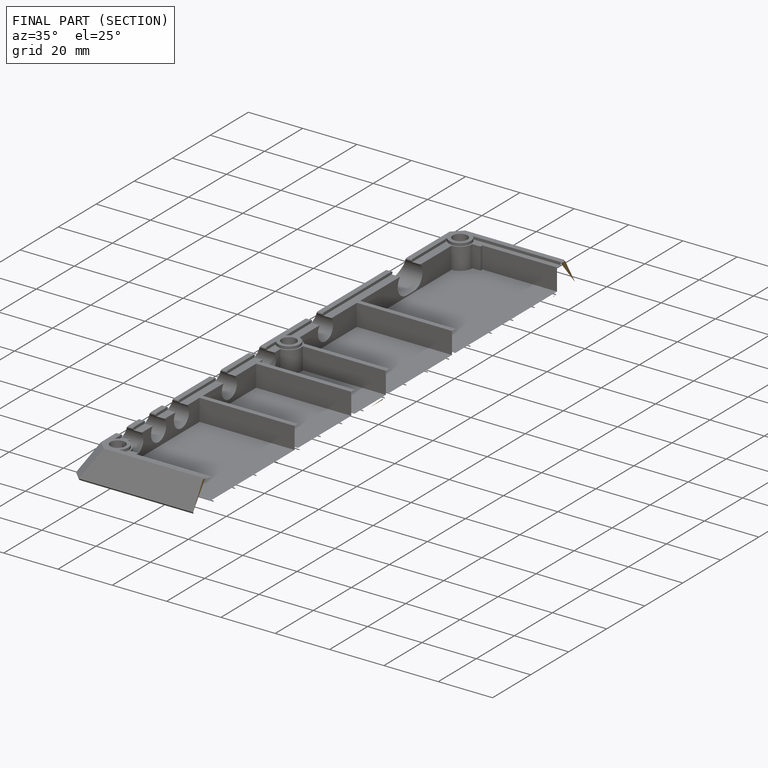
[diagram: finished part — half-section view (interior)]
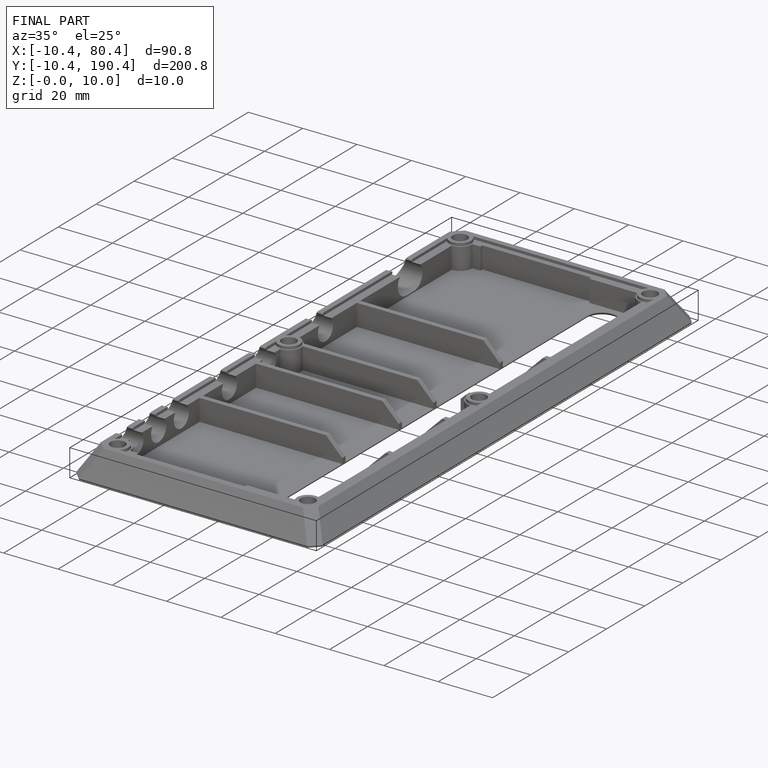
[diagram: finished part — iso view with bounding-box wireframe]
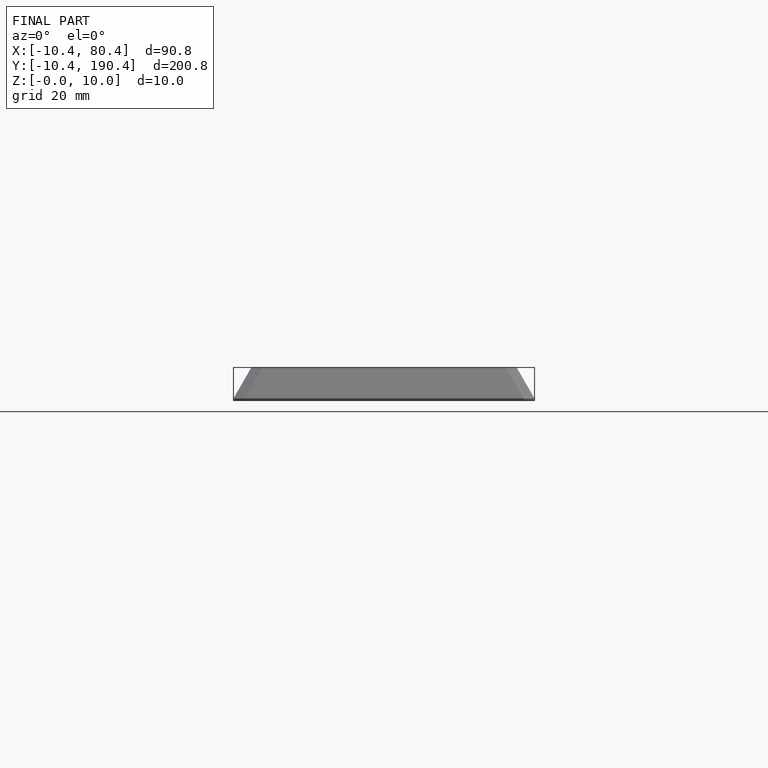
[diagram: finished part — front view with bounding-box wireframe]
